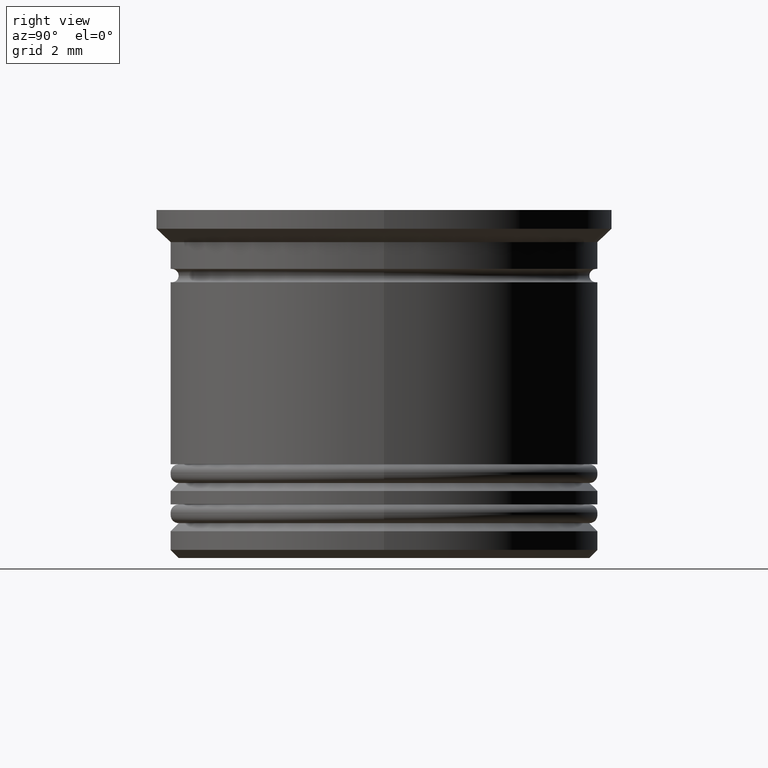
[diagram: clean part render]
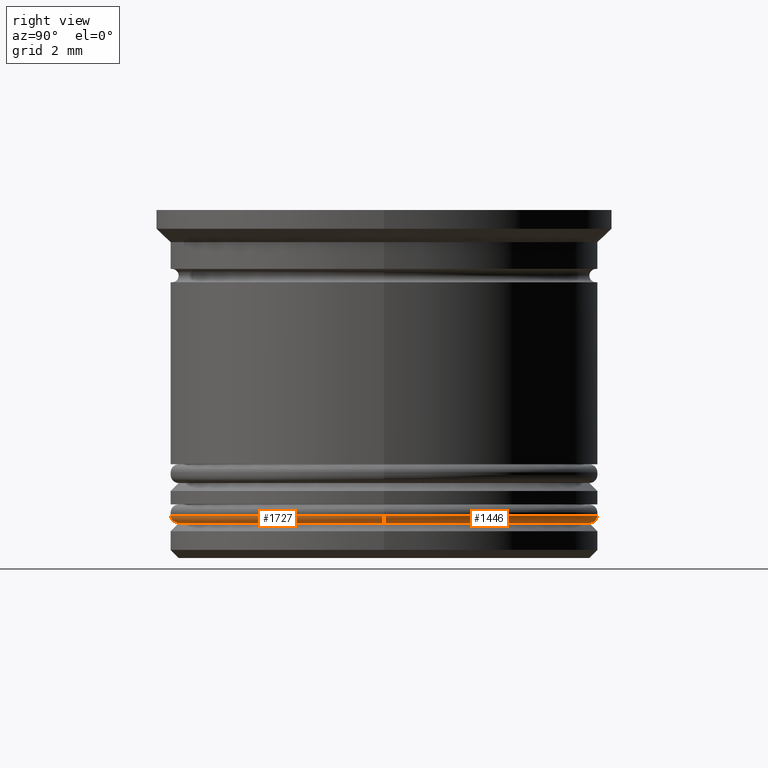
[diagram: same view with one multi-face feature highlighted, each face labeled with its STEP entity id]
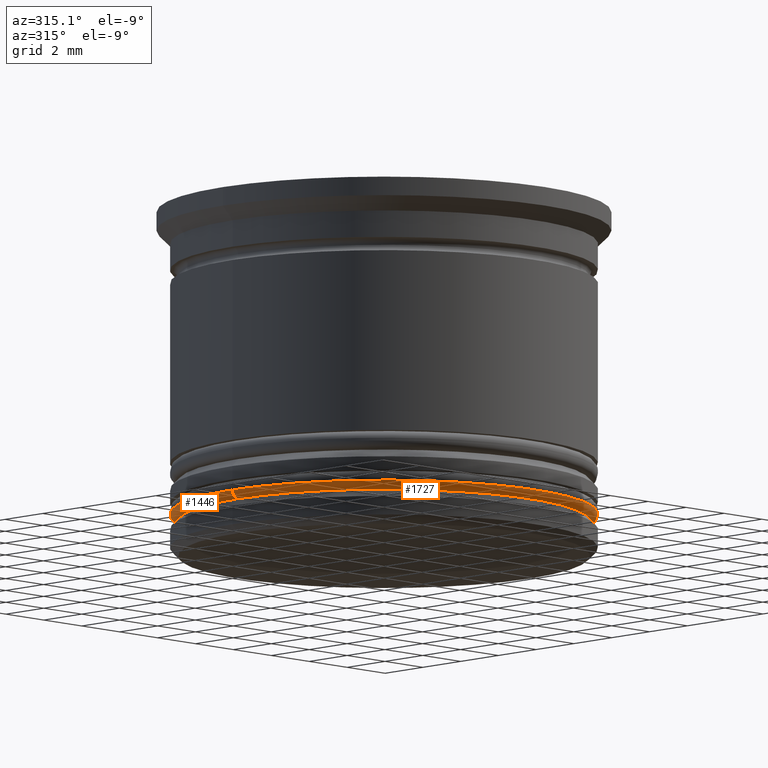
[diagram: same view with one multi-face feature highlighted, each face labeled with its STEP entity id]
A machine part, right view. The highlighted faces form ONE feature: a constant-radius fillet chain: 2 tangent blend faces with common blend radius 0.3 mm. The faces share edges in the B-rep.
A second angle (auxiliary view) of the same feature is appended — it is thin or edge-on in the first view.
Their STEP definitions:
[1] entity #1446 (Torus):
#5 = CARTESIAN_POINT ( 'NONE',  ( -7.700000000000001954, 9.613477373306725302E-16, -11.70000000000000639 ) ) ;
#139 = CIRCLE ( 'NONE', #237, 0.2999999999999999334 ) ;
#172 = CIRCLE ( 'NONE', #1256, 8.000000000000001776 ) ;
#181 = DIRECTION ( 'NONE',  ( 1.000000000000000000, 0.000000000000000000, 0.000000000000000000 ) ) ;
#208 = AXIS2_PLACEMENT_3D ( 'NONE', #768, #1055, #181 ) ;
#221 = DIRECTION ( 'NONE',  ( 0.000000000000000000, 0.000000000000000000, -1.000000000000000000 ) ) ;
#237 = AXIS2_PLACEMENT_3D ( 'NONE', #1790, #565, #221 ) ;
#241 = EDGE_CURVE ( 'NONE', #359, #619, #466, .T. ) ;
#260 = EDGE_CURVE ( 'NONE', #377, #890, #139, .T. ) ;
#359 = VERTEX_POINT ( 'NONE', #5 ) ;
#377 = VERTEX_POINT ( 'NONE', #1552 ) ;
#466 = CIRCLE ( 'NONE', #1421, 0.2999999999999999334 ) ;
#472 = TOROIDAL_SURFACE ( 'NONE', #208, 7.700000000000001954, 0.2999999999999999889 ) ;
#565 = DIRECTION ( 'NONE',  ( 0.000000000000000000, -1.000000000000000000, 0.000000000000000000 ) ) ;
#619 = VERTEX_POINT ( 'NONE', #1293 ) ;
#631 = CIRCLE ( 'NONE', #1799, 7.700000000000001954 ) ;
#715 = ORIENTED_EDGE ( 'NONE', *, *, #1315, .F. ) ;
#768 = CARTESIAN_POINT ( 'NONE',  ( 0.000000000000000000, 0.000000000000000000, -11.40000000000000746 ) ) ;
#770 = CARTESIAN_POINT ( 'NONE',  ( 8.000000000000001776, 0.000000000000000000, -11.40000000000000746 ) ) ;
#890 = VERTEX_POINT ( 'NONE', #770 ) ;
#970 = DIRECTION ( 'NONE',  ( -0.000000000000000000, -0.000000000000000000, -1.000000000000000000 ) ) ;
#979 = DIRECTION ( 'NONE',  ( -1.000000000000000000, 1.224646799147353207E-16, 0.000000000000000000 ) ) ;
#1055 = DIRECTION ( 'NONE',  ( 0.000000000000000000, 0.000000000000000000, 1.000000000000000000 ) ) ;
#1159 = CARTESIAN_POINT ( 'NONE',  ( 0.000000000000000000, 0.000000000000000000, -11.40000000000000746 ) ) ;
#1183 = EDGE_LOOP ( 'NONE', ( #1336, #1516, #715, #1888 ) ) ;
#1207 = DIRECTION ( 'NONE',  ( 1.000000000000000000, 0.000000000000000000, 0.000000000000000000 ) ) ;
#1256 = AXIS2_PLACEMENT_3D ( 'NONE', #1159, #1638, #1207 ) ;
#1293 = CARTESIAN_POINT ( 'NONE',  ( -8.000000000000001776, 9.797174393178827630E-16, -11.40000000000000746 ) ) ;
#1315 = EDGE_CURVE ( 'NONE', #890, #619, #172, .T. ) ;
#1336 = ORIENTED_EDGE ( 'NONE', *, *, #1482, .F. ) ;
#1421 = AXIS2_PLACEMENT_3D ( 'NONE', #1939, #1758, #979 ) ;
#1446 = ADVANCED_FACE ( 'NONE', ( #1723 ), #472, .T. ) ;
#1455 = DIRECTION ( 'NONE',  ( 1.000000000000000000, 0.000000000000000000, 0.000000000000000000 ) ) ;
#1482 = EDGE_CURVE ( 'NONE', #359, #377, #631, .T. ) ;
#1516 = ORIENTED_EDGE ( 'NONE', *, *, #241, .T. ) ;
#1552 = CARTESIAN_POINT ( 'NONE',  ( 7.700000000000001954, 0.000000000000000000, -11.70000000000000639 ) ) ;
#1602 = CARTESIAN_POINT ( 'NONE',  ( 0.000000000000000000, 0.000000000000000000, -11.70000000000000639 ) ) ;
#1638 = DIRECTION ( 'NONE',  ( 0.000000000000000000, 0.000000000000000000, 1.000000000000000000 ) ) ;
#1723 = FACE_OUTER_BOUND ( 'NONE', #1183, .T. ) ;
#1758 = DIRECTION ( 'NONE',  ( 1.224646799147353207E-16, 1.000000000000000000, -0.000000000000000000 ) ) ;
#1790 = CARTESIAN_POINT ( 'NONE',  ( 7.700000000000001954, 0.000000000000000000, -11.40000000000000746 ) ) ;
#1799 = AXIS2_PLACEMENT_3D ( 'NONE', #1602, #970, #1455 ) ;
#1888 = ORIENTED_EDGE ( 'NONE', *, *, #260, .F. ) ;
#1939 = CARTESIAN_POINT ( 'NONE',  ( -7.700000000000001954, 9.429780353434622974E-16, -11.40000000000000746 ) ) ;
[2] entity #1727 (Torus):
#5 = CARTESIAN_POINT ( 'NONE',  ( -7.700000000000001954, 9.613477373306725302E-16, -11.70000000000000639 ) ) ;
#13 = AXIS2_PLACEMENT_3D ( 'NONE', #421, #1337, #1029 ) ;
#38 = DIRECTION ( 'NONE',  ( -0.000000000000000000, -0.000000000000000000, -1.000000000000000000 ) ) ;
#139 = CIRCLE ( 'NONE', #237, 0.2999999999999999334 ) ;
#221 = DIRECTION ( 'NONE',  ( 0.000000000000000000, 0.000000000000000000, -1.000000000000000000 ) ) ;
#237 = AXIS2_PLACEMENT_3D ( 'NONE', #1790, #565, #221 ) ;
#241 = EDGE_CURVE ( 'NONE', #359, #619, #466, .T. ) ;
#260 = EDGE_CURVE ( 'NONE', #377, #890, #139, .T. ) ;
#274 = CIRCLE ( 'NONE', #365, 7.700000000000001954 ) ;
#359 = VERTEX_POINT ( 'NONE', #5 ) ;
#365 = AXIS2_PLACEMENT_3D ( 'NONE', #1892, #38, #1265 ) ;
#377 = VERTEX_POINT ( 'NONE', #1552 ) ;
#421 = CARTESIAN_POINT ( 'NONE',  ( 0.000000000000000000, 0.000000000000000000, -11.40000000000000746 ) ) ;
#466 = CIRCLE ( 'NONE', #1421, 0.2999999999999999334 ) ;
#477 = EDGE_CURVE ( 'NONE', #619, #890, #1850, .T. ) ;
#565 = DIRECTION ( 'NONE',  ( 0.000000000000000000, -1.000000000000000000, 0.000000000000000000 ) ) ;
#615 = FACE_OUTER_BOUND ( 'NONE', #1394, .T. ) ;
#619 = VERTEX_POINT ( 'NONE', #1293 ) ;
#644 = EDGE_CURVE ( 'NONE', #377, #359, #274, .T. ) ;
#679 = ORIENTED_EDGE ( 'NONE', *, *, #644, .F. ) ;
#754 = ORIENTED_EDGE ( 'NONE', *, *, #477, .F. ) ;
#770 = CARTESIAN_POINT ( 'NONE',  ( 8.000000000000001776, 0.000000000000000000, -11.40000000000000746 ) ) ;
#890 = VERTEX_POINT ( 'NONE', #770 ) ;
#979 = DIRECTION ( 'NONE',  ( -1.000000000000000000, 1.224646799147353207E-16, 0.000000000000000000 ) ) ;
#1000 = AXIS2_PLACEMENT_3D ( 'NONE', #1023, #1837, #1046 ) ;
#1023 = CARTESIAN_POINT ( 'NONE',  ( 0.000000000000000000, 0.000000000000000000, -11.40000000000000746 ) ) ;
#1029 = DIRECTION ( 'NONE',  ( 1.000000000000000000, 0.000000000000000000, 0.000000000000000000 ) ) ;
#1046 = DIRECTION ( 'NONE',  ( 1.000000000000000000, 0.000000000000000000, 0.000000000000000000 ) ) ;
#1179 = ORIENTED_EDGE ( 'NONE', *, *, #260, .T. ) ;
#1265 = DIRECTION ( 'NONE',  ( 1.000000000000000000, 0.000000000000000000, 0.000000000000000000 ) ) ;
#1293 = CARTESIAN_POINT ( 'NONE',  ( -8.000000000000001776, 9.797174393178827630E-16, -11.40000000000000746 ) ) ;
#1303 = ORIENTED_EDGE ( 'NONE', *, *, #241, .F. ) ;
#1337 = DIRECTION ( 'NONE',  ( 0.000000000000000000, 0.000000000000000000, 1.000000000000000000 ) ) ;
#1394 = EDGE_LOOP ( 'NONE', ( #1303, #679, #1179, #754 ) ) ;
#1421 = AXIS2_PLACEMENT_3D ( 'NONE', #1939, #1758, #979 ) ;
#1538 = TOROIDAL_SURFACE ( 'NONE', #13, 7.700000000000001954, 0.2999999999999999889 ) ;
#1552 = CARTESIAN_POINT ( 'NONE',  ( 7.700000000000001954, 0.000000000000000000, -11.70000000000000639 ) ) ;
#1727 = ADVANCED_FACE ( 'NONE', ( #615 ), #1538, .T. ) ;
#1758 = DIRECTION ( 'NONE',  ( 1.224646799147353207E-16, 1.000000000000000000, -0.000000000000000000 ) ) ;
#1790 = CARTESIAN_POINT ( 'NONE',  ( 7.700000000000001954, 0.000000000000000000, -11.40000000000000746 ) ) ;
#1837 = DIRECTION ( 'NONE',  ( 0.000000000000000000, 0.000000000000000000, 1.000000000000000000 ) ) ;
#1850 = CIRCLE ( 'NONE', #1000, 8.000000000000001776 ) ;
#1892 = CARTESIAN_POINT ( 'NONE',  ( 0.000000000000000000, 0.000000000000000000, -11.70000000000000639 ) ) ;
#1939 = CARTESIAN_POINT ( 'NONE',  ( -7.700000000000001954, 9.429780353434622974E-16, -11.40000000000000746 ) ) ;